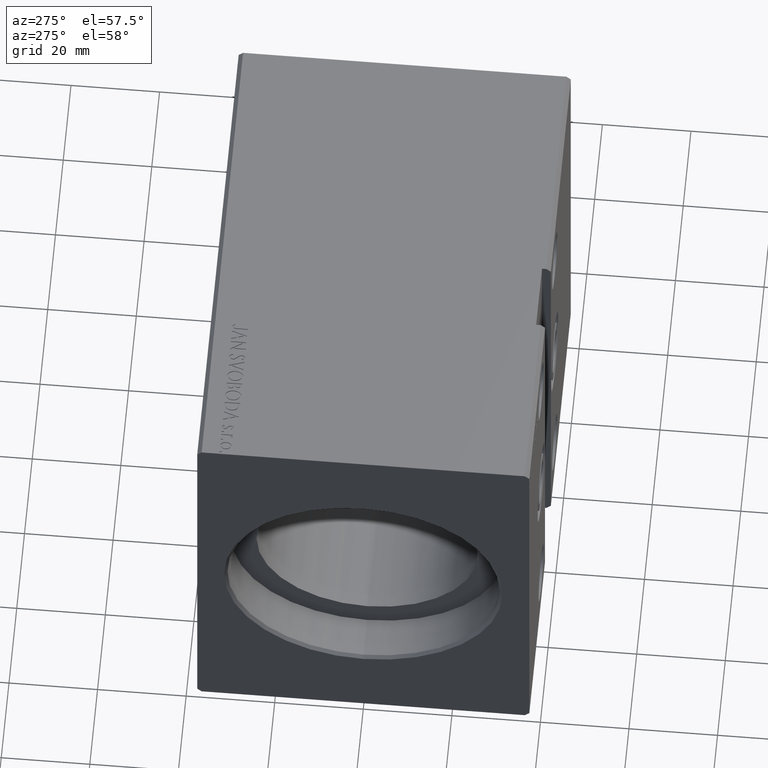
[diagram: clean part render]
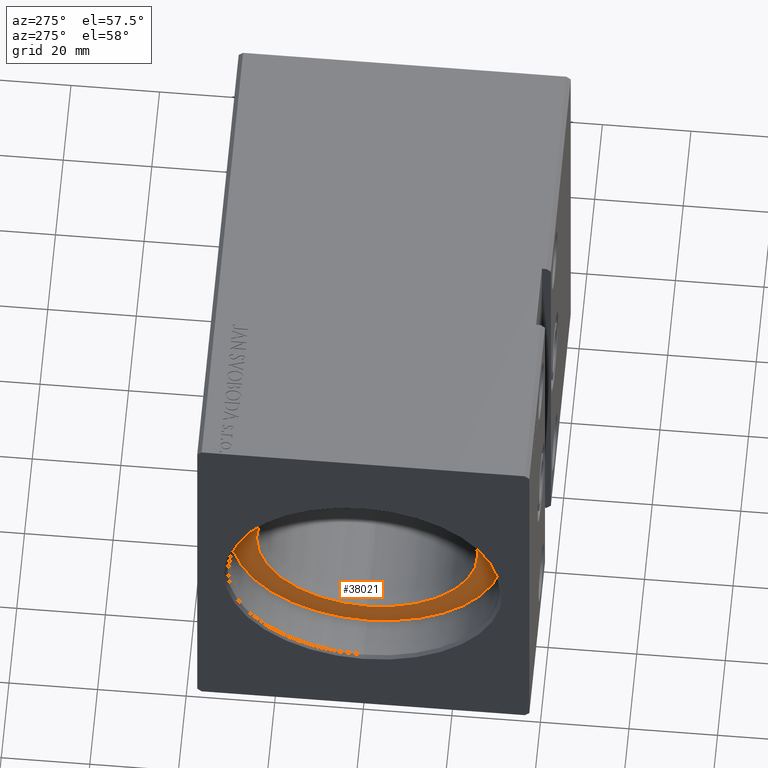
[diagram: same view with one face highlighted and labeled with its STEP entity id]
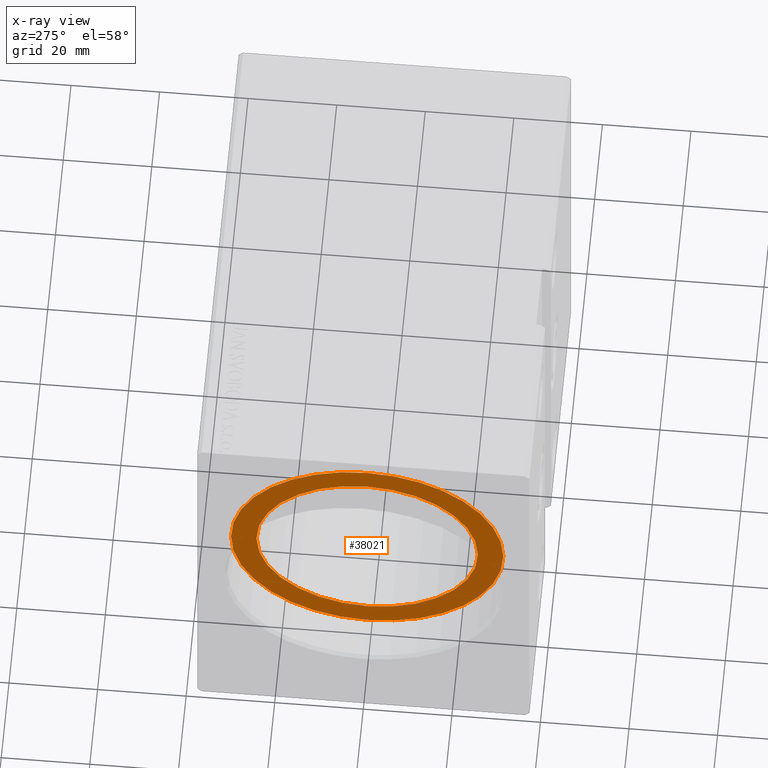
[diagram: x-ray of the same camera — body ghosted, the highlighted face saturated]
A machine part, auxiliary view. The second image highlights one B-rep face of the part: STEP entity #38021.
The next image is the same camera in x-ray: the body ghosted, the highlighted face saturated — about 1% of this face is hidden behind the body in this view.
In plain terms, the highlighted planar face has unit normal (-1, 0, 0).
Its self-contained STEP definition (entity closure, byte-faithful):
#940 = CARTESIAN_POINT ( 'NONE',  ( 10.00000000000000000, 0.000000000000000000, 0.000000000000000000 ) ) ;
#1323 = CIRCLE ( 'NONE', #19773, 25.00000000000000000 ) ;
#1515 = PLANE ( 'NONE',  #12225 ) ;
#2297 = CARTESIAN_POINT ( 'NONE',  ( 10.00000000000000000, 0.000000000000000000, 0.000000000000000000 ) ) ;
#3510 = DIRECTION ( 'NONE',  ( 0.000000000000000000, 0.000000000000000000, 1.000000000000000000 ) ) ;
#3635 = VERTEX_POINT ( 'NONE', #8712 ) ;
#6548 = AXIS2_PLACEMENT_3D ( 'NONE', #2297, #27443, #40005 ) ;
#7130 = DIRECTION ( 'NONE',  ( -1.000000000000000000, 0.000000000000000000, 0.000000000000000000 ) ) ;
#7178 = CARTESIAN_POINT ( 'NONE',  ( 9.999999999999994671, 0.000000000000000000, 0.000000000000000000 ) ) ;
#8664 = VERTEX_POINT ( 'NONE', #36417 ) ;
#8712 = CARTESIAN_POINT ( 'NONE',  ( 10.00000000000000000, 0.000000000000000000, 30.75000000000000355 ) ) ;
#10958 = CARTESIAN_POINT ( 'NONE',  ( 10.00000000000000000, 3.765788907378111328E-15, -30.75000000000000355 ) ) ;
#12179 = EDGE_CURVE ( 'NONE', #3635, #39123, #31371, .T. ) ;
#12225 = AXIS2_PLACEMENT_3D ( 'NONE', #29949, #14076, #39232 ) ;
#12723 = CIRCLE ( 'NONE', #15368, 25.00000000000000000 ) ;
#12993 = EDGE_LOOP ( 'NONE', ( #33159, #20416 ) ) ;
#14076 = DIRECTION ( 'NONE',  ( -1.000000000000000000, 0.000000000000000000, 0.000000000000000000 ) ) ;
#14821 = AXIS2_PLACEMENT_3D ( 'NONE', #940, #7130, #27049 ) ;
#15368 = AXIS2_PLACEMENT_3D ( 'NONE', #7178, #17612, #33688 ) ;
#17612 = DIRECTION ( 'NONE',  ( -1.000000000000000000, 0.000000000000000000, 0.000000000000000000 ) ) ;
#19773 = AXIS2_PLACEMENT_3D ( 'NONE', #38325, #34448, #3510 ) ;
#20161 = EDGE_CURVE ( 'NONE', #39123, #3635, #34221, .T. ) ;
#20272 = FACE_OUTER_BOUND ( 'NONE', #33963, .T. ) ;
#20416 = ORIENTED_EDGE ( 'NONE', *, *, #30109, .F. ) ;
#20618 = ORIENTED_EDGE ( 'NONE', *, *, #20161, .T. ) ;
#20975 = VERTEX_POINT ( 'NONE', #22487 ) ;
#22342 = EDGE_CURVE ( 'NONE', #20975, #8664, #1323, .T. ) ;
#22487 = CARTESIAN_POINT ( 'NONE',  ( 9.999999999999994671, 0.000000000000000000, 25.00000000000000000 ) ) ;
#27049 = DIRECTION ( 'NONE',  ( 0.000000000000000000, 0.000000000000000000, 1.000000000000000000 ) ) ;
#27443 = DIRECTION ( 'NONE',  ( -1.000000000000000000, 0.000000000000000000, 0.000000000000000000 ) ) ;
#29739 = FACE_BOUND ( 'NONE', #12993, .T. ) ;
#29949 = CARTESIAN_POINT ( 'NONE',  ( 10.00000000000000000, 0.000000000000000000, 0.000000000000000000 ) ) ;
#30109 = EDGE_CURVE ( 'NONE', #8664, #20975, #12723, .T. ) ;
#31371 = CIRCLE ( 'NONE', #14821, 30.75000000000000355 ) ;
#33159 = ORIENTED_EDGE ( 'NONE', *, *, #22342, .F. ) ;
#33688 = DIRECTION ( 'NONE',  ( 0.000000000000000000, 0.000000000000000000, 1.000000000000000000 ) ) ;
#33963 = EDGE_LOOP ( 'NONE', ( #37454, #20618 ) ) ;
#34221 = CIRCLE ( 'NONE', #6548, 30.75000000000000355 ) ;
#34448 = DIRECTION ( 'NONE',  ( -1.000000000000000000, 0.000000000000000000, 0.000000000000000000 ) ) ;
#36417 = CARTESIAN_POINT ( 'NONE',  ( 9.999999999999994671, 3.061616997868383043E-15, -25.00000000000000000 ) ) ;
#37454 = ORIENTED_EDGE ( 'NONE', *, *, #12179, .T. ) ;
#38021 = ADVANCED_FACE ( 'NONE', ( #29739, #20272 ), #1515, .T. ) ;
#38325 = CARTESIAN_POINT ( 'NONE',  ( 9.999999999999994671, 0.000000000000000000, 0.000000000000000000 ) ) ;
#39123 = VERTEX_POINT ( 'NONE', #10958 ) ;
#39232 = DIRECTION ( 'NONE',  ( 0.000000000000000000, 0.000000000000000000, 1.000000000000000000 ) ) ;
#40005 = DIRECTION ( 'NONE',  ( 0.000000000000000000, 0.000000000000000000, 1.000000000000000000 ) ) ;